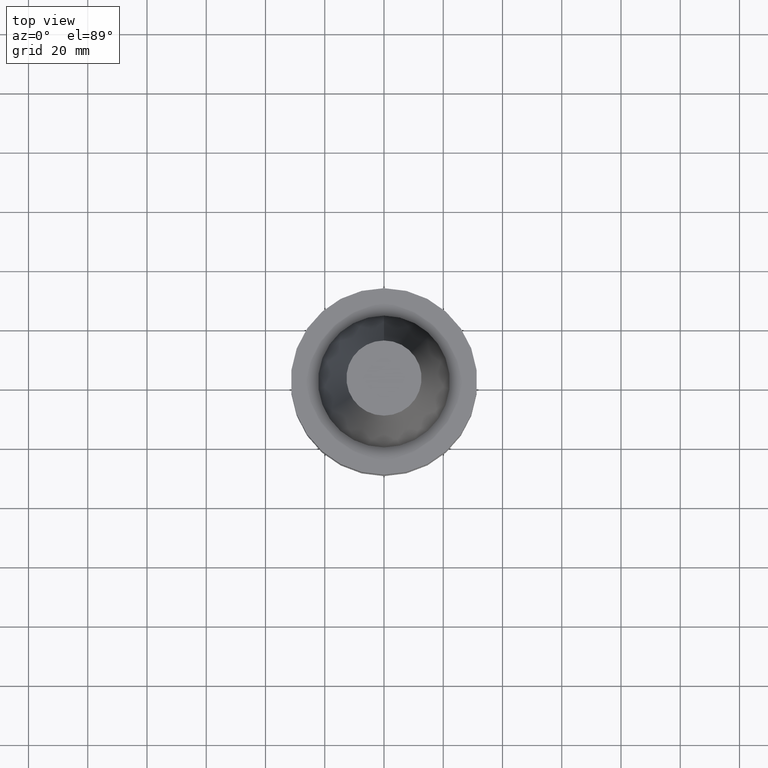
[diagram: clean part render]
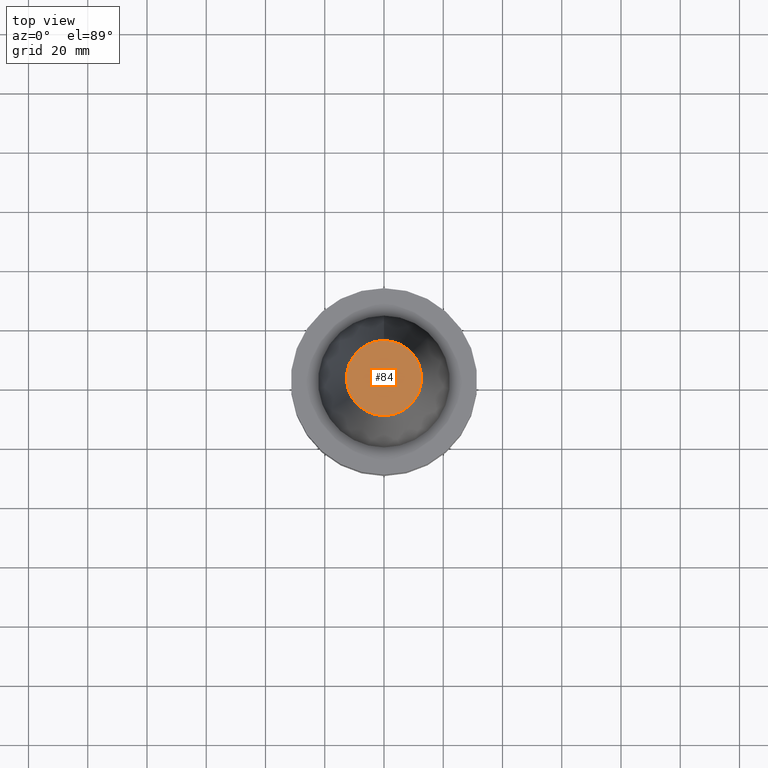
[diagram: same view with one face highlighted and labeled with its STEP entity id]
A machine part, top view. The second image highlights one B-rep face of the part: STEP entity #84.
In plain terms, the highlighted planar face has unit normal (-0, -0, 1).
Its self-contained STEP definition (entity closure, byte-faithful):
#84=ADVANCED_FACE('',(#120),#121,.T.);
#120=FACE_OUTER_BOUND('',#169,.T.);
#121=PLANE('',#170);
#169=EDGE_LOOP('',(#236));
#170=AXIS2_PLACEMENT_3D('',#237,#238,#239);
#236=ORIENTED_EDGE('',*,*,#284,.F.);
#237=CARTESIAN_POINT('',(-4.00459503321185E-015,6.34375000265984,65.4));
#238=DIRECTION('',(-6.12323399573677E-017,-1.22464679914735E-016,1.0));
#239=DIRECTION('',(1.23259516440783E-032,-1.0,-1.22464679914735E-016));
#284=EDGE_CURVE('',#310,#310,#311,.T.);
#310=VERTEX_POINT('',#342);
#311=CIRCLE('',#343,12.6875000053197);
#342=CARTESIAN_POINT('',(-4.00459503321185E-015,12.6875000053197,65.4));
#343=AXIS2_PLACEMENT_3D('',#384,#385,#386);
#384=CARTESIAN_POINT('',(-4.00459503321185E-015,-8.00919006642369E-015,65.4));
#385=DIRECTION('',(6.12323399573677E-017,1.22464679914735E-016,-1.0));
#386=DIRECTION('',(-1.23259516440783E-032,1.0,1.22464679914735E-016));